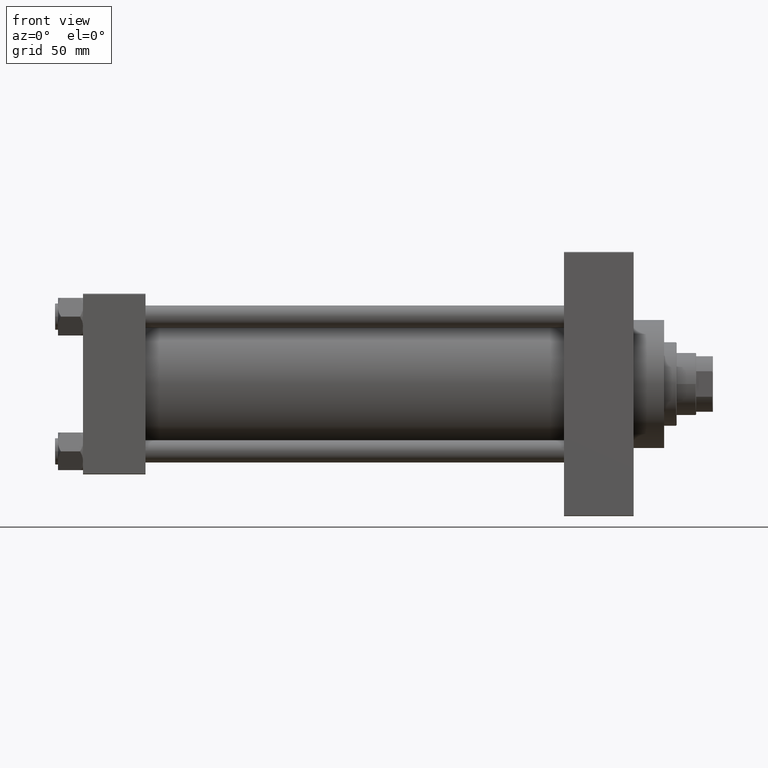
[diagram: clean part render]
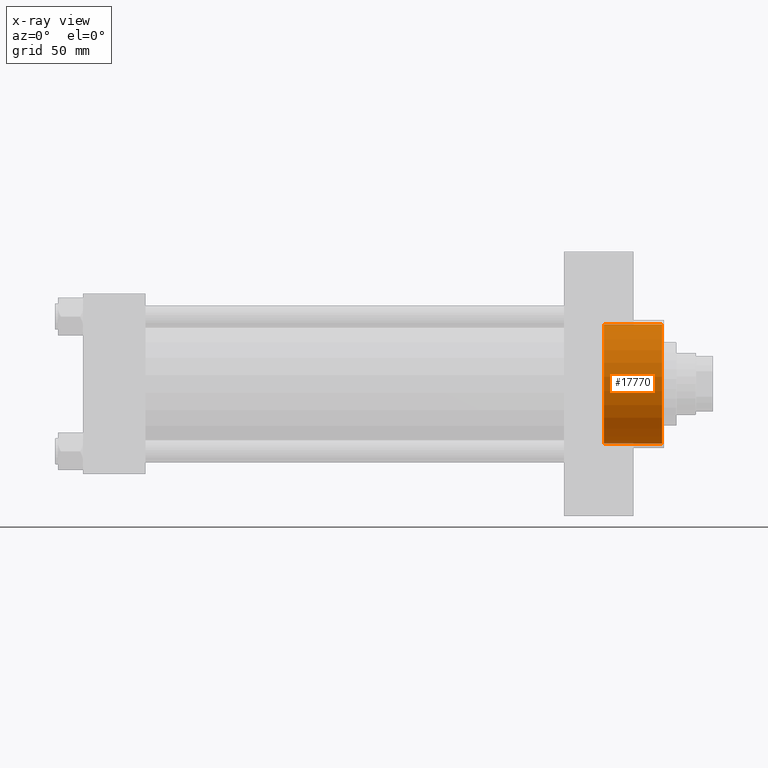
[diagram: x-ray — body ghosted, one internal face saturated and labeled with its STEP entity id]
A machine part, front view, then the same camera in x-ray: the body is ghosted and one INTERNAL B-rep face — a face not visible from any outside direction — is saturated and labeled: STEP entity #17770.
In plain terms, the highlighted cylindrical surface (partial cylindrical patch) has radius 42.75 mm, axis along (1, 0, 0).
Its self-contained STEP definition (entity closure, byte-faithful):
#490 = ORIENTED_EDGE ( 'NONE', *, *, #43733, .T. ) ;
#832 = DIRECTION ( 'NONE',  ( 0.000000000000000000, 0.000000000000000000, -1.000000000000000000 ) ) ;
#4146 = VERTEX_POINT ( 'NONE', #18716 ) ;
#5169 = LINE ( 'NONE', #12917, #13283 ) ;
#6686 = AXIS2_PLACEMENT_3D ( 'NONE', #38111, #34012, #832 ) ;
#6758 = AXIS2_PLACEMENT_3D ( 'NONE', #43502, #46671, #35760 ) ;
#8357 = VERTEX_POINT ( 'NONE', #9169 ) ;
#9169 = CARTESIAN_POINT ( 'NONE',  ( 416.5000000000000000, 5.235365066354935472E-15, 42.75000000000000000 ) ) ;
#9523 = DIRECTION ( 'NONE',  ( 0.000000000000000000, 0.000000000000000000, -1.000000000000000000 ) ) ;
#11784 = ORIENTED_EDGE ( 'NONE', *, *, #20175, .T. ) ;
#12917 = CARTESIAN_POINT ( 'NONE',  ( 374.7399999999999523, 5.235365066354935472E-15, 42.75000000000000000 ) ) ;
#13283 = VECTOR ( 'NONE', #31552, 1000.000000000000000 ) ;
#13400 = DIRECTION ( 'NONE',  ( 1.000000000000000000, 0.000000000000000000, 0.000000000000000000 ) ) ;
#13546 = EDGE_LOOP ( 'NONE', ( #41316, #490, #11784, #36773 ) ) ;
#15101 = EDGE_CURVE ( 'NONE', #16812, #4146, #23722, .T. ) ;
#16812 = VERTEX_POINT ( 'NONE', #26669 ) ;
#17770 = ADVANCED_FACE ( 'NONE', ( #34485 ), #31077, .F. ) ;
#18716 = CARTESIAN_POINT ( 'NONE',  ( 374.7399999999999523, 0.000000000000000000, -42.75000000000000000 ) ) ;
#20175 = EDGE_CURVE ( 'NONE', #8357, #29694, #39219, .T. ) ;
#22005 = CARTESIAN_POINT ( 'NONE',  ( 374.7399999999999523, 0.000000000000000000, -42.75000000000000000 ) ) ;
#23722 = CIRCLE ( 'NONE', #41546, 42.75000000000000000 ) ;
#25633 = DIRECTION ( 'NONE',  ( 1.000000000000000000, -0.000000000000000000, -0.000000000000000000 ) ) ;
#26669 = CARTESIAN_POINT ( 'NONE',  ( 374.7399999999999523, 5.235365066354935472E-15, 42.75000000000000000 ) ) ;
#29694 = VERTEX_POINT ( 'NONE', #31754 ) ;
#30942 = EDGE_CURVE ( 'NONE', #4146, #29694, #40414, .T. ) ;
#31077 = CYLINDRICAL_SURFACE ( 'NONE', #6686, 42.75000000000000000 ) ;
#31552 = DIRECTION ( 'NONE',  ( 1.000000000000000000, -0.000000000000000000, -0.000000000000000000 ) ) ;
#31754 = CARTESIAN_POINT ( 'NONE',  ( 416.5000000000000000, 0.000000000000000000, -42.75000000000000000 ) ) ;
#34012 = DIRECTION ( 'NONE',  ( 1.000000000000000000, -0.000000000000000000, -0.000000000000000000 ) ) ;
#34485 = FACE_OUTER_BOUND ( 'NONE', #13546, .T. ) ;
#35760 = DIRECTION ( 'NONE',  ( 0.000000000000000000, 0.000000000000000000, -1.000000000000000000 ) ) ;
#36773 = ORIENTED_EDGE ( 'NONE', *, *, #30942, .F. ) ;
#38111 = CARTESIAN_POINT ( 'NONE',  ( 374.7399999999999523, 0.000000000000000000, 0.000000000000000000 ) ) ;
#39219 = CIRCLE ( 'NONE', #6758, 42.75000000000000000 ) ;
#40414 = LINE ( 'NONE', #22005, #44126 ) ;
#41316 = ORIENTED_EDGE ( 'NONE', *, *, #15101, .F. ) ;
#41546 = AXIS2_PLACEMENT_3D ( 'NONE', #46580, #13400, #9523 ) ;
#43502 = CARTESIAN_POINT ( 'NONE',  ( 416.5000000000000000, 0.000000000000000000, 0.000000000000000000 ) ) ;
#43733 = EDGE_CURVE ( 'NONE', #16812, #8357, #5169, .T. ) ;
#44126 = VECTOR ( 'NONE', #25633, 1000.000000000000000 ) ;
#46580 = CARTESIAN_POINT ( 'NONE',  ( 374.7399999999999523, 0.000000000000000000, 0.000000000000000000 ) ) ;
#46671 = DIRECTION ( 'NONE',  ( 1.000000000000000000, 0.000000000000000000, 0.000000000000000000 ) ) ;